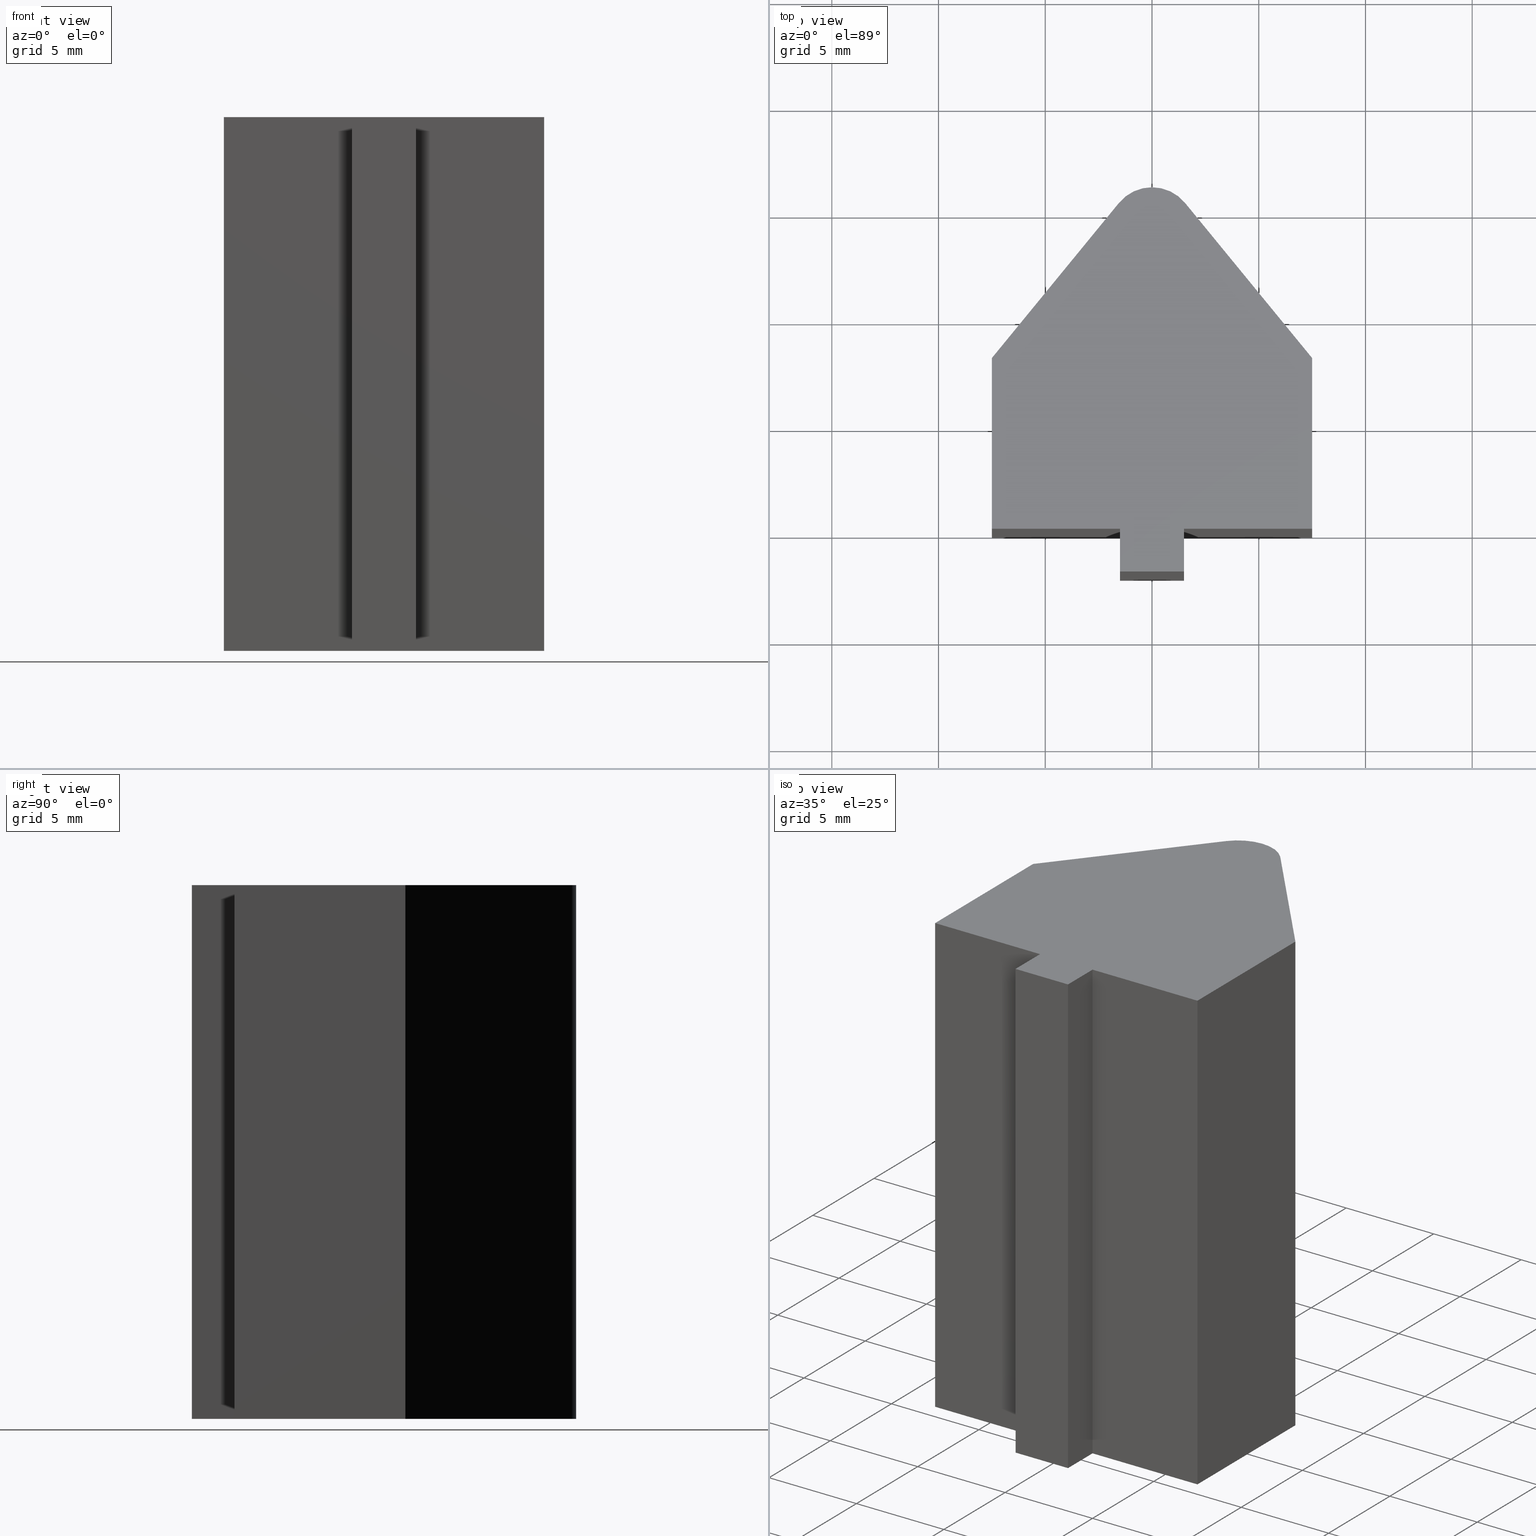
[diagram: canonical four-view strip — front | top / right | iso, engineering-drawing reading convention]
A machine part, canonical four-view strip (front | top / right | iso — engineering-drawing reading convention). The complete STEP part file that produces these views, byte-faithful:
ISO-10303-21;
HEADER;
/* Generated by software containing ST-Developer
 * from STEP Tools, Inc. (www.steptools.com) 
 */

FILE_DESCRIPTION(
/* description */ (''),
/* implementation_level */ '2;1');

FILE_NAME(
/* name */ 'E_3_01_06_07_00_WKZ-0141.stp',
/* time_stamp */ '2025-11-24T11:54:49+01:00',
/* author */ ('d.fischer'),
/* organization */ (''),
/* preprocessor_version */ 'ST-DEVELOPER v20',
/* originating_system */ 'Autodesk Inventor 2025',
/* authorisation */ '');

FILE_SCHEMA (('AUTOMOTIVE_DESIGN { 1 0 10303 214 3 1 1 }'));
ENDSEC;

DATA;
#10=MECHANICAL_DESIGN_GEOMETRIC_PRESENTATION_REPRESENTATION('',(#15,#16),
#393);
#11=SHAPE_REPRESENTATION_RELATIONSHIP('SRR','None',#400,#12);
#12=ADVANCED_BREP_SHAPE_REPRESENTATION('',(#13),#392);
#13=MANIFOLD_SOLID_BREP('Volumenk\X\F6rper1',#232);
#14=CYLINDRICAL_SURFACE('',#263,2.);
#15=STYLED_ITEM('',(#410),#222);
#16=STYLED_ITEM('',(#409),#13);
#17=FACE_OUTER_BOUND('',#29,.T.);
#18=FACE_OUTER_BOUND('',#30,.T.);
#19=FACE_OUTER_BOUND('',#31,.T.);
#20=FACE_OUTER_BOUND('',#32,.T.);
#21=FACE_OUTER_BOUND('',#33,.T.);
#22=FACE_OUTER_BOUND('',#34,.T.);
#23=FACE_OUTER_BOUND('',#35,.T.);
#24=FACE_OUTER_BOUND('',#36,.T.);
#25=FACE_OUTER_BOUND('',#37,.T.);
#26=FACE_OUTER_BOUND('',#38,.T.);
#27=FACE_OUTER_BOUND('',#39,.T.);
#28=FACE_OUTER_BOUND('',#40,.T.);
#29=EDGE_LOOP('',(#149,#150,#151,#152,#153,#154,#155,#156,#157,#158));
#30=EDGE_LOOP('',(#159,#160,#161,#162));
#31=EDGE_LOOP('',(#163,#164,#165,#166));
#32=EDGE_LOOP('',(#167,#168,#169,#170));
#33=EDGE_LOOP('',(#171,#172,#173,#174));
#34=EDGE_LOOP('',(#175,#176,#177,#178));
#35=EDGE_LOOP('',(#179,#180,#181,#182));
#36=EDGE_LOOP('',(#183,#184,#185,#186));
#37=EDGE_LOOP('',(#187,#188,#189,#190));
#38=EDGE_LOOP('',(#191,#192,#193,#194));
#39=EDGE_LOOP('',(#195,#196,#197,#198));
#40=EDGE_LOOP('',(#199,#200,#201,#202,#203,#204,#205,#206,#207,#208));
#41=CIRCLE('',#256,2.);
#42=CIRCLE('',#264,2.);
#43=LINE('',#331,#71);
#44=LINE('',#333,#72);
#45=LINE('',#335,#73);
#46=LINE('',#337,#74);
#47=LINE('',#339,#75);
#48=LINE('',#341,#76);
#49=LINE('',#343,#77);
#50=LINE('',#345,#78);
#51=LINE('',#348,#79);
#52=LINE('',#352,#80);
#53=LINE('',#353,#81);
#54=LINE('',#354,#82);
#55=LINE('',#357,#83);
#56=LINE('',#358,#84);
#57=LINE('',#361,#85);
#58=LINE('',#362,#86);
#59=LINE('',#365,#87);
#60=LINE('',#366,#88);
#61=LINE('',#369,#89);
#62=LINE('',#370,#90);
#63=LINE('',#373,#91);
#64=LINE('',#374,#92);
#65=LINE('',#378,#93);
#66=LINE('',#381,#94);
#67=LINE('',#382,#95);
#68=LINE('',#385,#96);
#69=LINE('',#386,#97);
#70=LINE('',#388,#98);
#71=VECTOR('',#273,10.);
#72=VECTOR('',#274,10.);
#73=VECTOR('',#275,10.);
#74=VECTOR('',#276,10.);
#75=VECTOR('',#277,10.);
#76=VECTOR('',#278,10.);
#77=VECTOR('',#279,10.);
#78=VECTOR('',#280,10.);
#79=VECTOR('',#283,10.);
#80=VECTOR('',#286,10.);
#81=VECTOR('',#287,10.);
#82=VECTOR('',#288,10.);
#83=VECTOR('',#291,10.);
#84=VECTOR('',#292,10.);
#85=VECTOR('',#295,10.);
#86=VECTOR('',#296,10.);
#87=VECTOR('',#299,10.);
#88=VECTOR('',#300,10.);
#89=VECTOR('',#303,10.);
#90=VECTOR('',#304,10.);
#91=VECTOR('',#307,10.);
#92=VECTOR('',#308,10.);
#93=VECTOR('',#313,10.);
#94=VECTOR('',#316,10.);
#95=VECTOR('',#317,10.);
#96=VECTOR('',#320,10.);
#97=VECTOR('',#321,10.);
#98=VECTOR('',#324,10.);
#99=VERTEX_POINT('',#329);
#100=VERTEX_POINT('',#330);
#101=VERTEX_POINT('',#332);
#102=VERTEX_POINT('',#334);
#103=VERTEX_POINT('',#336);
#104=VERTEX_POINT('',#338);
#105=VERTEX_POINT('',#340);
#106=VERTEX_POINT('',#342);
#107=VERTEX_POINT('',#344);
#108=VERTEX_POINT('',#346);
#109=VERTEX_POINT('',#350);
#110=VERTEX_POINT('',#351);
#111=VERTEX_POINT('',#356);
#112=VERTEX_POINT('',#360);
#113=VERTEX_POINT('',#364);
#114=VERTEX_POINT('',#368);
#115=VERTEX_POINT('',#372);
#116=VERTEX_POINT('',#376);
#117=VERTEX_POINT('',#380);
#118=VERTEX_POINT('',#384);
#119=EDGE_CURVE('',#99,#100,#43,.T.);
#120=EDGE_CURVE('',#101,#99,#44,.T.);
#121=EDGE_CURVE('',#102,#101,#45,.T.);
#122=EDGE_CURVE('',#103,#102,#46,.T.);
#123=EDGE_CURVE('',#104,#103,#47,.T.);
#124=EDGE_CURVE('',#105,#104,#48,.T.);
#125=EDGE_CURVE('',#106,#105,#49,.T.);
#126=EDGE_CURVE('',#107,#106,#50,.T.);
#127=EDGE_CURVE('',#108,#107,#41,.T.);
#128=EDGE_CURVE('',#100,#108,#51,.T.);
#129=EDGE_CURVE('',#109,#110,#52,.T.);
#130=EDGE_CURVE('',#110,#102,#53,.T.);
#131=EDGE_CURVE('',#109,#101,#54,.T.);
#132=EDGE_CURVE('',#110,#111,#55,.T.);
#133=EDGE_CURVE('',#111,#103,#56,.T.);
#134=EDGE_CURVE('',#111,#112,#57,.T.);
#135=EDGE_CURVE('',#112,#104,#58,.T.);
#136=EDGE_CURVE('',#112,#113,#59,.T.);
#137=EDGE_CURVE('',#113,#105,#60,.T.);
#138=EDGE_CURVE('',#113,#114,#61,.T.);
#139=EDGE_CURVE('',#114,#106,#62,.T.);
#140=EDGE_CURVE('',#114,#115,#63,.T.);
#141=EDGE_CURVE('',#115,#107,#64,.T.);
#142=EDGE_CURVE('',#115,#116,#42,.T.);
#143=EDGE_CURVE('',#116,#108,#65,.T.);
#144=EDGE_CURVE('',#116,#117,#66,.T.);
#145=EDGE_CURVE('',#117,#100,#67,.T.);
#146=EDGE_CURVE('',#117,#118,#68,.T.);
#147=EDGE_CURVE('',#99,#118,#69,.T.);
#148=EDGE_CURVE('',#118,#109,#70,.T.);
#149=ORIENTED_EDGE('',*,*,#119,.F.);
#150=ORIENTED_EDGE('',*,*,#120,.F.);
#151=ORIENTED_EDGE('',*,*,#121,.F.);
#152=ORIENTED_EDGE('',*,*,#122,.F.);
#153=ORIENTED_EDGE('',*,*,#123,.F.);
#154=ORIENTED_EDGE('',*,*,#124,.F.);
#155=ORIENTED_EDGE('',*,*,#125,.F.);
#156=ORIENTED_EDGE('',*,*,#126,.F.);
#157=ORIENTED_EDGE('',*,*,#127,.F.);
#158=ORIENTED_EDGE('',*,*,#128,.F.);
#159=ORIENTED_EDGE('',*,*,#129,.T.);
#160=ORIENTED_EDGE('',*,*,#130,.T.);
#161=ORIENTED_EDGE('',*,*,#121,.T.);
#162=ORIENTED_EDGE('',*,*,#131,.F.);
#163=ORIENTED_EDGE('',*,*,#132,.T.);
#164=ORIENTED_EDGE('',*,*,#133,.T.);
#165=ORIENTED_EDGE('',*,*,#122,.T.);
#166=ORIENTED_EDGE('',*,*,#130,.F.);
#167=ORIENTED_EDGE('',*,*,#134,.T.);
#168=ORIENTED_EDGE('',*,*,#135,.T.);
#169=ORIENTED_EDGE('',*,*,#123,.T.);
#170=ORIENTED_EDGE('',*,*,#133,.F.);
#171=ORIENTED_EDGE('',*,*,#136,.T.);
#172=ORIENTED_EDGE('',*,*,#137,.T.);
#173=ORIENTED_EDGE('',*,*,#124,.T.);
#174=ORIENTED_EDGE('',*,*,#135,.F.);
#175=ORIENTED_EDGE('',*,*,#138,.T.);
#176=ORIENTED_EDGE('',*,*,#139,.T.);
#177=ORIENTED_EDGE('',*,*,#125,.T.);
#178=ORIENTED_EDGE('',*,*,#137,.F.);
#179=ORIENTED_EDGE('',*,*,#140,.T.);
#180=ORIENTED_EDGE('',*,*,#141,.T.);
#181=ORIENTED_EDGE('',*,*,#126,.T.);
#182=ORIENTED_EDGE('',*,*,#139,.F.);
#183=ORIENTED_EDGE('',*,*,#142,.T.);
#184=ORIENTED_EDGE('',*,*,#143,.T.);
#185=ORIENTED_EDGE('',*,*,#127,.T.);
#186=ORIENTED_EDGE('',*,*,#141,.F.);
#187=ORIENTED_EDGE('',*,*,#144,.T.);
#188=ORIENTED_EDGE('',*,*,#145,.T.);
#189=ORIENTED_EDGE('',*,*,#128,.T.);
#190=ORIENTED_EDGE('',*,*,#143,.F.);
#191=ORIENTED_EDGE('',*,*,#146,.T.);
#192=ORIENTED_EDGE('',*,*,#147,.F.);
#193=ORIENTED_EDGE('',*,*,#119,.T.);
#194=ORIENTED_EDGE('',*,*,#145,.F.);
#195=ORIENTED_EDGE('',*,*,#148,.T.);
#196=ORIENTED_EDGE('',*,*,#131,.T.);
#197=ORIENTED_EDGE('',*,*,#120,.T.);
#198=ORIENTED_EDGE('',*,*,#147,.T.);
#199=ORIENTED_EDGE('',*,*,#129,.F.);
#200=ORIENTED_EDGE('',*,*,#148,.F.);
#201=ORIENTED_EDGE('',*,*,#146,.F.);
#202=ORIENTED_EDGE('',*,*,#144,.F.);
#203=ORIENTED_EDGE('',*,*,#142,.F.);
#204=ORIENTED_EDGE('',*,*,#140,.F.);
#205=ORIENTED_EDGE('',*,*,#138,.F.);
#206=ORIENTED_EDGE('',*,*,#136,.F.);
#207=ORIENTED_EDGE('',*,*,#134,.F.);
#208=ORIENTED_EDGE('',*,*,#132,.F.);
#209=PLANE('',#255);
#210=PLANE('',#257);
#211=PLANE('',#258);
#212=PLANE('',#259);
#213=PLANE('',#260);
#214=PLANE('',#261);
#215=PLANE('',#262);
#216=PLANE('',#265);
#217=PLANE('',#266);
#218=PLANE('',#267);
#219=PLANE('',#268);
#220=ADVANCED_FACE('',(#17),#209,.F.);
#221=ADVANCED_FACE('',(#18),#210,.T.);
#222=ADVANCED_FACE('',(#19),#211,.T.);
#223=ADVANCED_FACE('',(#20),#212,.T.);
#224=ADVANCED_FACE('',(#21),#213,.T.);
#225=ADVANCED_FACE('',(#22),#214,.T.);
#226=ADVANCED_FACE('',(#23),#215,.T.);
#227=ADVANCED_FACE('',(#24),#14,.T.);
#228=ADVANCED_FACE('',(#25),#216,.T.);
#229=ADVANCED_FACE('',(#26),#217,.T.);
#230=ADVANCED_FACE('',(#27),#218,.T.);
#231=ADVANCED_FACE('',(#28),#219,.T.);
#232=CLOSED_SHELL('',(#220,#221,#222,#223,#224,#225,#226,#227,#228,#229,
#230,#231));
#233=DERIVED_UNIT_ELEMENT(#236,1.);
#234=DERIVED_UNIT_ELEMENT(#395,-3.);
#235=DIMENSIONAL_EXPONENTS(0.,1.,0.,0.,0.,0.,0.);
#236=(
CONVERSION_BASED_UNIT('gram',#238)
MASS_UNIT()
NAMED_UNIT(#235)
);
#237=(
MASS_UNIT()
NAMED_UNIT(*)
SI_UNIT(.KILO.,.GRAM.)
);
#238=MASS_MEASURE_WITH_UNIT(MASS_MEASURE(0.001),#237);
#239=DERIVED_UNIT((#233,#234));
#240=MEASURE_REPRESENTATION_ITEM('density measure',
POSITIVE_RATIO_MEASURE(8.03),#239);
#241=PROPERTY_DEFINITION_REPRESENTATION(#246,#243);
#242=PROPERTY_DEFINITION_REPRESENTATION(#247,#244);
#243=REPRESENTATION('material name',(#245),#392);
#244=REPRESENTATION('density',(#240),#392);
#245=DESCRIPTIVE_REPRESENTATION_ITEM('1.4301','1.4301');
#246=PROPERTY_DEFINITION('material property','material name',#402);
#247=PROPERTY_DEFINITION('material property','density of part',#402);
#248=DATE_TIME_ROLE('creation_date');
#249=APPLIED_DATE_AND_TIME_ASSIGNMENT(#250,#248,(#402));
#250=DATE_AND_TIME(#251,#252);
#251=CALENDAR_DATE(2011,18,10);
#252=LOCAL_TIME(0,0,0.,#253);
#253=COORDINATED_UNIVERSAL_TIME_OFFSET(0,0,.BEHIND.);
#254=AXIS2_PLACEMENT_3D('',#327,#269,#270);
#255=AXIS2_PLACEMENT_3D('',#328,#271,#272);
#256=AXIS2_PLACEMENT_3D('',#347,#281,#282);
#257=AXIS2_PLACEMENT_3D('',#349,#284,#285);
#258=AXIS2_PLACEMENT_3D('',#355,#289,#290);
#259=AXIS2_PLACEMENT_3D('',#359,#293,#294);
#260=AXIS2_PLACEMENT_3D('',#363,#297,#298);
#261=AXIS2_PLACEMENT_3D('',#367,#301,#302);
#262=AXIS2_PLACEMENT_3D('',#371,#305,#306);
#263=AXIS2_PLACEMENT_3D('',#375,#309,#310);
#264=AXIS2_PLACEMENT_3D('',#377,#311,#312);
#265=AXIS2_PLACEMENT_3D('',#379,#314,#315);
#266=AXIS2_PLACEMENT_3D('',#383,#318,#319);
#267=AXIS2_PLACEMENT_3D('',#387,#322,#323);
#268=AXIS2_PLACEMENT_3D('',#389,#325,#326);
#269=DIRECTION('axis',(0.,0.,1.));
#270=DIRECTION('refdir',(1.,0.,0.));
#271=DIRECTION('center_axis',(0.,0.,1.));
#272=DIRECTION('ref_axis',(1.,0.,0.));
#273=DIRECTION('',(0.,1.,0.));
#274=DIRECTION('',(1.,-1.22464679914736E-16,0.));
#275=DIRECTION('',(-5.55111512312578E-16,1.,0.));
#276=DIRECTION('',(1.,0.,0.));
#277=DIRECTION('',(-5.55111512312578E-16,-1.,0.));
#278=DIRECTION('',(1.,1.22464679914736E-16,0.));
#279=DIRECTION('',(0.,-1.,0.));
#280=DIRECTION('',(-0.633670497075444,-0.773603064327023,0.));
#281=DIRECTION('center_axis',(0.,0.,1.));
#282=DIRECTION('ref_axis',(-0.773603064327022,-0.633670497075445,0.));
#283=DIRECTION('',(-0.633670497075444,0.773603064327023,0.));
#284=DIRECTION('center_axis',(1.,5.55111512312578E-16,0.));
#285=DIRECTION('ref_axis',(0.,0.,-1.));
#286=DIRECTION('',(5.55111512312578E-16,-1.,0.));
#287=DIRECTION('',(0.,0.,-1.));
#288=DIRECTION('',(0.,0.,-1.));
#289=DIRECTION('center_axis',(0.,-1.,0.));
#290=DIRECTION('ref_axis',(0.,0.,-1.));
#291=DIRECTION('',(-1.,0.,0.));
#292=DIRECTION('',(0.,0.,-1.));
#293=DIRECTION('center_axis',(-1.,5.55111512312578E-16,0.));
#294=DIRECTION('ref_axis',(0.,0.,1.));
#295=DIRECTION('',(5.55111512312578E-16,1.,0.));
#296=DIRECTION('',(0.,0.,-1.));
#297=DIRECTION('center_axis',(1.22464679914736E-16,-1.,0.));
#298=DIRECTION('ref_axis',(0.,0.,-1.));
#299=DIRECTION('',(-1.,-1.22464679914736E-16,0.));
#300=DIRECTION('',(0.,0.,-1.));
#301=DIRECTION('center_axis',(-1.,0.,0.));
#302=DIRECTION('ref_axis',(0.,0.,1.));
#303=DIRECTION('',(0.,1.,0.));
#304=DIRECTION('',(0.,0.,-1.));
#305=DIRECTION('center_axis',(-0.773603064327023,0.633670497075444,0.));
#306=DIRECTION('ref_axis',(0.,0.,1.));
#307=DIRECTION('',(0.633670497075444,0.773603064327023,0.));
#308=DIRECTION('',(0.,0.,-1.));
#309=DIRECTION('center_axis',(0.,0.,1.));
#310=DIRECTION('ref_axis',(-0.773603064327022,-0.633670497075445,0.));
#311=DIRECTION('center_axis',(0.,0.,-1.));
#312=DIRECTION('ref_axis',(-0.773603064327022,-0.633670497075445,0.));
#313=DIRECTION('',(0.,0.,-1.));
#314=DIRECTION('center_axis',(0.773603064327023,0.633670497075444,0.));
#315=DIRECTION('ref_axis',(0.,0.,-1.));
#316=DIRECTION('',(0.633670497075444,-0.773603064327023,0.));
#317=DIRECTION('',(0.,0.,-1.));
#318=DIRECTION('center_axis',(1.,0.,0.));
#319=DIRECTION('ref_axis',(0.,0.,-1.));
#320=DIRECTION('',(0.,-1.,0.));
#321=DIRECTION('',(0.,0.,1.));
#322=DIRECTION('center_axis',(-1.22464679914736E-16,-1.,0.));
#323=DIRECTION('ref_axis',(0.,0.,-1.));
#324=DIRECTION('',(-1.,1.22464679914736E-16,0.));
#325=DIRECTION('center_axis',(0.,0.,1.));
#326=DIRECTION('ref_axis',(1.,0.,0.));
#327=CARTESIAN_POINT('',(0.,0.,0.));
#328=CARTESIAN_POINT('Origin',(-4.16333634234434E-16,5.72386949192024,-12.5));
#329=CARTESIAN_POINT('',(7.5,2.21076160048808E-15,-12.5));
#330=CARTESIAN_POINT('',(7.5,8.,-12.5));
#331=CARTESIAN_POINT('',(7.5,8.,-12.5));
#332=CARTESIAN_POINT('',(1.5,2.9455496799765E-15,-12.5));
#333=CARTESIAN_POINT('',(7.5,2.21076160048808E-15,-12.5));
#334=CARTESIAN_POINT('',(1.5,-2.,-12.5));
#335=CARTESIAN_POINT('',(1.5,2.9455496799765E-15,-12.5));
#336=CARTESIAN_POINT('',(-1.5,-2.,-12.5));
#337=CARTESIAN_POINT('',(1.5,-2.,-12.5));
#338=CARTESIAN_POINT('',(-1.5,2.9455496799765E-15,-12.5));
#339=CARTESIAN_POINT('',(-1.5,-2.,-12.5));
#340=CARTESIAN_POINT('',(-7.5,2.21076160048808E-15,-12.5));
#341=CARTESIAN_POINT('',(-1.5,2.9455496799765E-15,-12.5));
#342=CARTESIAN_POINT('',(-7.5,8.,-12.5));
#343=CARTESIAN_POINT('',(-7.5,2.21076160048808E-15,-12.5));
#344=CARTESIAN_POINT('',(-1.54720612865404,15.2673409941509,-12.5));
#345=CARTESIAN_POINT('',(-7.5,8.,-12.5));
#346=CARTESIAN_POINT('',(1.54720612865404,15.2673409941509,-12.5));
#347=CARTESIAN_POINT('Origin',(0.,14.,-12.5));
#348=CARTESIAN_POINT('',(1.54720612865404,15.2673409941509,-12.5));
#349=CARTESIAN_POINT('Origin',(1.5,2.9455496799765E-15,0.));
#350=CARTESIAN_POINT('',(1.5,2.9455496799765E-15,12.5));
#351=CARTESIAN_POINT('',(1.5,-2.,12.5));
#352=CARTESIAN_POINT('',(1.5,2.9455496799765E-15,12.5));
#353=CARTESIAN_POINT('',(1.5,-2.,0.));
#354=CARTESIAN_POINT('',(1.5,2.9455496799765E-15,0.));
#355=CARTESIAN_POINT('Origin',(1.5,-2.,0.));
#356=CARTESIAN_POINT('',(-1.5,-2.,12.5));
#357=CARTESIAN_POINT('',(1.5,-2.,12.5));
#358=CARTESIAN_POINT('',(-1.5,-2.,0.));
#359=CARTESIAN_POINT('Origin',(-1.5,-2.,0.));
#360=CARTESIAN_POINT('',(-1.5,2.9455496799765E-15,12.5));
#361=CARTESIAN_POINT('',(-1.5,-2.,12.5));
#362=CARTESIAN_POINT('',(-1.5,2.9455496799765E-15,0.));
#363=CARTESIAN_POINT('Origin',(-1.5,2.9455496799765E-15,0.));
#364=CARTESIAN_POINT('',(-7.5,2.21076160048808E-15,12.5));
#365=CARTESIAN_POINT('',(-1.5,2.9455496799765E-15,12.5));
#366=CARTESIAN_POINT('',(-7.5,2.21076160048808E-15,0.));
#367=CARTESIAN_POINT('Origin',(-7.5,2.21076160048808E-15,0.));
#368=CARTESIAN_POINT('',(-7.5,8.,12.5));
#369=CARTESIAN_POINT('',(-7.5,2.21076160048808E-15,12.5));
#370=CARTESIAN_POINT('',(-7.5,8.,0.));
#371=CARTESIAN_POINT('Origin',(-7.5,8.,0.));
#372=CARTESIAN_POINT('',(-1.54720612865404,15.2673409941509,12.5));
#373=CARTESIAN_POINT('',(-7.5,8.,12.5));
#374=CARTESIAN_POINT('',(-1.54720612865404,15.2673409941509,0.));
#375=CARTESIAN_POINT('Origin',(0.,14.,0.));
#376=CARTESIAN_POINT('',(1.54720612865404,15.2673409941509,12.5));
#377=CARTESIAN_POINT('Origin',(0.,14.,12.5));
#378=CARTESIAN_POINT('',(1.54720612865404,15.2673409941509,0.));
#379=CARTESIAN_POINT('Origin',(1.54720612865404,15.2673409941509,0.));
#380=CARTESIAN_POINT('',(7.5,8.,12.5));
#381=CARTESIAN_POINT('',(1.54720612865404,15.2673409941509,12.5));
#382=CARTESIAN_POINT('',(7.5,8.,0.));
#383=CARTESIAN_POINT('Origin',(7.5,8.,0.));
#384=CARTESIAN_POINT('',(7.5,2.21076160048808E-15,12.5));
#385=CARTESIAN_POINT('',(7.5,8.,12.5));
#386=CARTESIAN_POINT('',(7.5,2.21076160048808E-15,0.));
#387=CARTESIAN_POINT('Origin',(7.5,2.21076160048808E-15,0.));
#388=CARTESIAN_POINT('',(7.5,2.21076160048808E-15,12.5));
#389=CARTESIAN_POINT('Origin',(-4.33680868994202E-16,5.72386949192024,12.5));
#390=UNCERTAINTY_MEASURE_WITH_UNIT(LENGTH_MEASURE(0.01),#394,
'DISTANCE_ACCURACY_VALUE',
'Maximum model space distance between geometric entities at asserted c
onnectivities');
#391=UNCERTAINTY_MEASURE_WITH_UNIT(LENGTH_MEASURE(0.01),#394,
'DISTANCE_ACCURACY_VALUE',
'Maximum model space distance between geometric entities at asserted c
onnectivities');
#392=(
GEOMETRIC_REPRESENTATION_CONTEXT(3)
GLOBAL_UNCERTAINTY_ASSIGNED_CONTEXT((#390))
GLOBAL_UNIT_ASSIGNED_CONTEXT((#394,#396,#397))
REPRESENTATION_CONTEXT('','3D')
);
#393=(
GEOMETRIC_REPRESENTATION_CONTEXT(3)
GLOBAL_UNCERTAINTY_ASSIGNED_CONTEXT((#391))
GLOBAL_UNIT_ASSIGNED_CONTEXT((#394,#396,#397))
REPRESENTATION_CONTEXT('','3D')
);
#394=(
LENGTH_UNIT()
NAMED_UNIT(*)
SI_UNIT(.MILLI.,.METRE.)
);
#395=(
LENGTH_UNIT()
NAMED_UNIT(*)
SI_UNIT(.CENTI.,.METRE.)
);
#396=(
NAMED_UNIT(*)
PLANE_ANGLE_UNIT()
SI_UNIT($,.RADIAN.)
);
#397=(
NAMED_UNIT(*)
SI_UNIT($,.STERADIAN.)
SOLID_ANGLE_UNIT()
);
#398=SHAPE_DEFINITION_REPRESENTATION(#399,#400);
#399=PRODUCT_DEFINITION_SHAPE('',$,#402);
#400=SHAPE_REPRESENTATION('',(#254),#392);
#401=PRODUCT_DEFINITION_CONTEXT('part definition',#406,'design');
#402=PRODUCT_DEFINITION('WKZ-0141','E_3_01_06_07_00_WKZ-0141',#403,#401);
#403=PRODUCT_DEFINITION_FORMATION('',$,#408);
#404=PRODUCT_RELATED_PRODUCT_CATEGORY('E_3_01_06_07_00_WKZ-0141',
'E_3_01_06_07_00_WKZ-0141',(#408));
#405=APPLICATION_PROTOCOL_DEFINITION('international standard',
'automotive_design',2009,#406);
#406=APPLICATION_CONTEXT(
'Core Data for Automotive Mechanical Design Process');
#407=PRODUCT_CONTEXT('part definition',#406,'mechanical');
#408=PRODUCT('WKZ-0141','E_3_01_06_07_00_WKZ-0141',$,(#407));
#409=PRESENTATION_STYLE_ASSIGNMENT((#411));
#410=PRESENTATION_STYLE_ASSIGNMENT((#412));
#411=SURFACE_STYLE_USAGE(.BOTH.,#415);
#412=SURFACE_STYLE_USAGE(.BOTH.,#416);
#413=SURFACE_STYLE_RENDERING_WITH_PROPERTIES($,#423,(#414));
#414=SURFACE_STYLE_TRANSPARENT(0.);
#415=SURFACE_SIDE_STYLE('',(#417,#413));
#416=SURFACE_SIDE_STYLE('',(#418));
#417=SURFACE_STYLE_FILL_AREA(#419);
#418=SURFACE_STYLE_FILL_AREA(#420);
#419=FILL_AREA_STYLE('',(#421));
#420=FILL_AREA_STYLE('',(#422));
#421=FILL_AREA_STYLE_COLOUR('',#423);
#422=FILL_AREA_STYLE_COLOUR('',#424);
#423=COLOUR_RGB('',0.92156862745098,0.92156862745098,0.92156862745098);
#424=COLOUR_RGB('',0.16078431372549,0.16078431372549,0.16078431372549);
ENDSEC;
END-ISO-10303-21;
